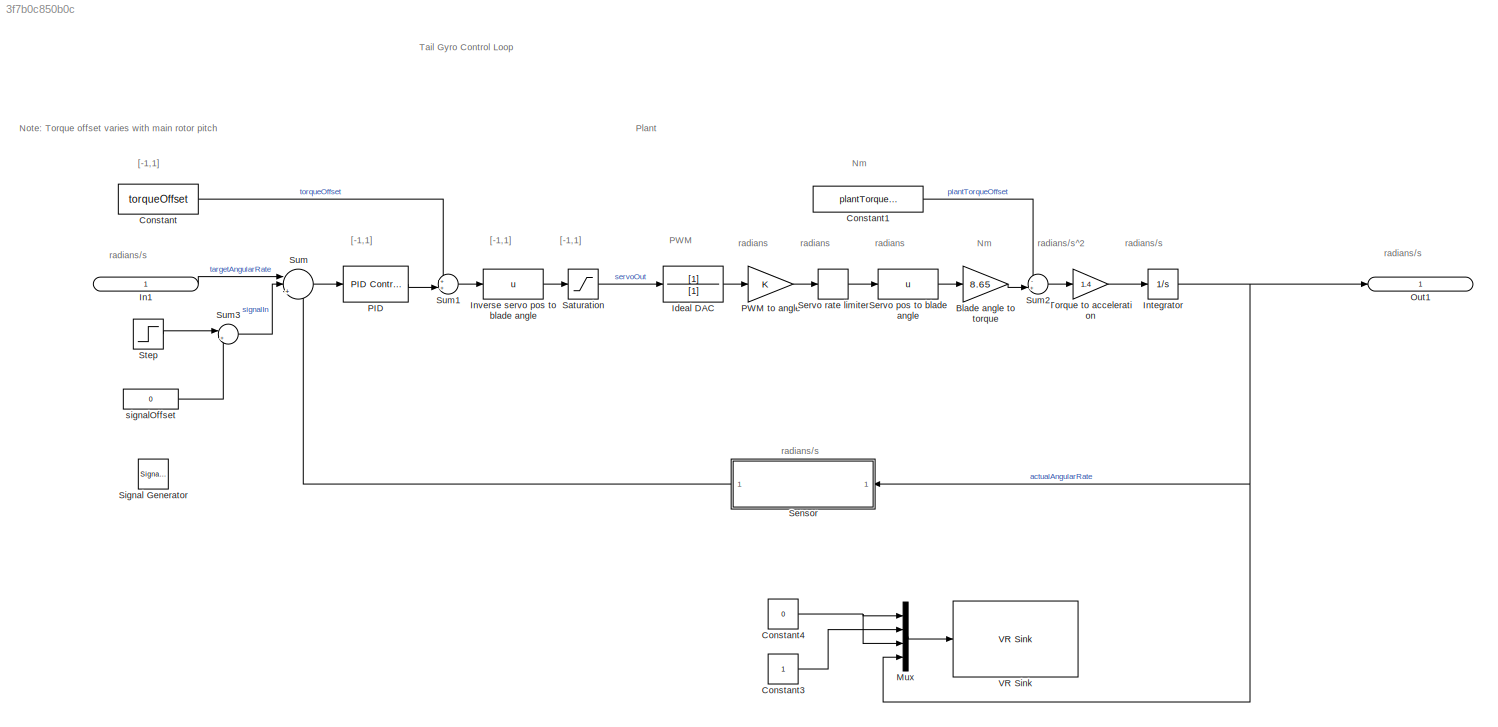
MODEL slx_3f7b0c850b0c
KIND model
CONFIG AbsTol = auto
CONFIG FixedStep = auto
CONFIG MaxStep = auto
CONFIG MinStep = auto
CONFIG RelTol = 1e-3
CONFIG SampleTimeConstraint = Unconstrained
CONFIG Solver = ode45
CONFIG SolverMode = Auto
CONFIG SolverName = ode45
CONFIG StartTime = 0.0
CONFIG StopTime = 10
BLOCK [Gain] Blade angle to torque
  Gain = 8.65
  OutDataTypeStr = Inherit: Inherit via internal rule
  ParamDataTypeStr = Inherit: Inherit via internal rule
  SaturateOnIntegerOverflow = off
BLOCK [Constant] Constant
  SampleTime = dt
  Value = torqueOffset
BLOCK [Constant] Constant1
  Value = plantTorqueOffset
BLOCK [Constant] Constant3
  Commented = on
BLOCK [Constant] Constant4
  Commented = on
  Value = 0
BLOCK [TransferFcn] Ideal DAC
  Denominator = [1]
BLOCK [Inport] In1
  IconDisplay = Signal name
  SampleTime = dt
BLOCK [Integrator] Integrator
  Ports = [1, 1]
BLOCK [Fcn] Inverse servo pos to blade angle 
  Expr = u
BLOCK [Mux] Mux
  Commented = on
  DisplayOption = bar
  Ports = [4, 1]
BLOCK [Outport] Out1
  IconDisplay = Signal name
BLOCK [Reference] PID  REF=simulink/Continuous/PID Controller
  AntiWindupMode = clamping
  Controller = PID
  ControllerParametersSource = internal
  D = .035
  DGainOutDataTypeStr = Inherit: Inherit via internal rule
  DOutDataTypeStr = Inherit: Inherit via internal rule
  DOutMax = []
  DOutMin = []
  DParamDataTypeStr = Inherit: Inherit via internal rule
  DParamMax = []
  DParamMin = []
  DProdOutDataTypeStr = Inherit: Inherit via internal rule
  DifferentiatorICPrevScaledInput = 0
  DifferentiatorOutDataTypeStr = Inherit: Inherit via internal rule
  DifferentiatorOutMax = []
  DifferentiatorOutMin = []
  ExternalReset = none
  FilterContinuousStateAttributes = ''
  FilterMethod = Forward Euler
  FilterOutDataTypeStr = Inherit: Inherit via internal rule
  FilterOutMax = []
  FilterOutMin = []
  FilterRTWStateStorageClass = Auto
  FilterStateMustResolveToSignalObject = off
  Form = Parallel
  I = 2.38693404249782
  IGainOutDataTypeStr = Inherit: Inherit via internal rule
  IOutDataTypeStr = Inherit: Inherit via internal rule
  IOutMax = []
  IOutMin = []
  IParamDataTypeStr = Inherit: Inherit via internal rule
  IParamMax = []
  IParamMin = []
  IProdOutDataTypeStr = Inherit: Inherit via internal rule
  IgnoreLimit = off
  InitialConditionForFilter = 0
  InitialConditionForIntegrator = 0
  InitialConditionSource = internal
  IntegratorContinuousStateAttributes = ''
  IntegratorMethod = Forward Euler
  IntegratorOutDataTypeStr = Inherit: Inherit via internal rule
  IntegratorOutMax = []
  IntegratorOutMin = []
  IntegratorRTWStateStorageClass = Auto
  IntegratorStateMustResolveToSignalObject = off
  Kb = 0.5
  KbOutDataTypeStr = Inherit: Inherit via internal rule
  KbOutMax = []
  KbOutMin = []
  KbParamDataTypeStr = Inherit: Inherit via internal rule
  KbParamMax = []
  KbParamMin = []
  Kt = 1
  KtOutDataTypeStr = Inherit: Inherit via internal rule
  KtOutMax = []
  KtOutMin = []
  KtParamDataTypeStr = Inherit: Inherit via internal rule
  KtParamMax = []
  KtParamMin = []
  LimitOutput = on
  LinearizeAsGain = on
  LockScale = off
  LowerSaturationLimit = -1 - torqueOffset
  N = 100
  NGainOutDataTypeStr = Inherit: Inherit via internal rule
  NOutDataTypeStr = Inherit: Inherit via internal rule
  NOutMax = []
  NOutMin = []
  NParamDataTypeStr = Inherit: Inherit via internal rule
  NParamMax = []
  NParamMin = []
  NProdOutDataTypeStr = Inherit: Inherit via internal rule
  P = 1.08315527025018
  PGainOutDataTypeStr = Inherit: Inherit via internal rule
  POutDataTypeStr = Inherit: Inherit via internal rule
  POutMax = []
  POutMin = []
  PParamDataTypeStr = Inherit: Inherit via internal rule
  PParamMax = []
  PParamMin = []
  PProdOutDataTypeStr = Inherit: Inherit via internal rule
  Ports = [1, 1]
  RndMeth = Floor
  SampleTime = dt
  SaturateOnIntegerOverflow = off
  SaturationOutDataTypeStr = Inherit: Same as input
  SaturationOutMax = []
  SaturationOutMin = []
  SourceBlock = simulink/Continuous/PID Controller
  SourceType = PID 1dof
  SumAccumDataTypeStr = Inherit: Inherit via internal rule
  SumDAccumDataTypeStr = Inherit: Inherit via internal rule
  SumDOutDataTypeStr = Inherit: Same as first input
  SumDOutMax = []
  SumDOutMin = []
  SumI1AccumDataTypeStr = Inherit: Inherit via internal rule
  SumI1OutDataTypeStr = Inherit: Inherit via internal rule
  SumI1OutMax = []
  SumI1OutMin = []
  SumI2AccumDataTypeStr = Inherit: Inherit via internal rule
  SumI2OutDataTypeStr = Inherit: Inherit via internal rule
  SumI2OutMax = []
  SumI2OutMin = []
  SumI3AccumDataTypeStr = Inherit: Inherit via internal rule
  SumI3OutDataTypeStr = Inherit: Inherit via internal rule
  SumI3OutMax = []
  SumI3OutMin = []
  SumOutDataTypeStr = Inherit: Same as first input
  SumOutMax = []
  SumOutMin = []
  TimeDomain = Discrete-time
  TrackingMode = off
  UpperSaturationLimit = 1 - torqueOffset
  UseFilter = off
  ZeroCross = off
BLOCK [Gain] PWM to angle
  OutDataTypeStr = Inherit: Inherit via internal rule
  ParamDataTypeStr = Inherit: Inherit via internal rule
  SaturateOnIntegerOverflow = off
BLOCK [Saturate] Saturation
  InputPortMap = u0
  LowerLimit = -1
  Ports = [1, 1]
  UpperLimit = 1
BLOCK [ModelReference] Sensor
  CopyOfModelName = gyroscope.slx
  DefaultDataLogging = on
  ModelNameDialog = gyroscope.slx
  ModelReferenceVersion = 1.23
  ParameterArgumentNames = randomSeed
  ParameterArgumentValues = 1
  Ports = [1, 1]
BLOCK [Fcn] Servo pos to blade angle
  Expr = u
BLOCK [RateLimiter] Servo rate limiter
  FallingSlewLimit = -15
  RisingSlewLimit = 15
  SampleTimeMode = inherited
BLOCK [SignalGenerator] Signal Generator
  Frequency = 0.5
  Ports = [0, 1]
  Units = rad/sec
  WaveForm = square
BLOCK [Step] Step
  SampleTime = dt
BLOCK [Sum] Sum
  IconShape = round
  InputSameDT = off
  Inputs = ||++-
  OutDataTypeStr = Inherit: Inherit via internal rule
  Ports = [3, 1]
  SaturateOnIntegerOverflow = off
BLOCK [Sum] Sum1
  IconShape = round
  InputSameDT = off
  Inputs = ++|
  OutDataTypeStr = Inherit: Inherit via internal rule
  Ports = [2, 1]
  SaturateOnIntegerOverflow = off
BLOCK [Sum] Sum2
  IconShape = round
  InputSameDT = off
  Inputs = -+|
  OutDataTypeStr = Inherit: Inherit via internal rule
  Ports = [2, 1]
  SaturateOnIntegerOverflow = off
BLOCK [Sum] Sum3
  IconShape = round
  InputSameDT = off
  Inputs = |++
  OutDataTypeStr = Inherit: Inherit via internal rule
  Ports = [2, 1]
  SaturateOnIntegerOverflow = off
BLOCK [Gain] Torque to acceleration
  Gain = 1.4
  OutDataTypeStr = Inherit: Inherit via internal rule
  ParamDataTypeStr = Inherit: Inherit via internal rule
  SaturateOnIntegerOverflow = off
BLOCK [Reference] VR Sink  REF=vrlib/VR Sink
  AllowVariableSize = off
  AutoView = off
  Commented = on
  FieldsWritten = Helicopter.rotation.4.1.1.double
  InstantiateOnLoad = on
  Ports = [1]
  RemoteChange = off
  RemoteView = off
  SampleTime = -1
  SourceBlock = vrlib/VR Sink
  SourceType = Virtual Reality Sink
  VideoDimensions = []
  ViewEnable = on
  WorldFileName = animation\animation_world.wrl
BLOCK [Constant] signalOffset
  SampleTime = dt
  Value = 0
ANNOTATION (root): Note: Torque offset varies with main rotor pitch
ANNOTATION (root): Tail Gyro Control Loop
ANNOTATION (root): Nm
ANNOTATION (root): PWM
ANNOTATION (root): Plant
ANNOTATION (root): [-1,1]
ANNOTATION (root): radians
ANNOTATION (root): radians/s
ANNOTATION (root): radians/s^2
LINE Blade angle to torque:1 -> Sum2:2
LINE Constant1:1 -> Sum2:1
LINE Constant3:1 -> Mux:2
NET Constant4:1 -> Mux:1, Mux:3
LINE Constant:1 -> Sum1:1
LINE Ideal DAC:1 -> PWM to angle:1
LINE In1:1 -> Sum:1
NET Integrator:1 -> Mux:4, Out1:1, Sensor:1
LINE Inverse servo pos to blade angle :1 -> Saturation:1
LINE Mux:1 -> VR Sink:1
LINE PID:1 -> Sum1:2
LINE PWM to angle:1 -> Servo rate limiter:1
LINE Saturation:1 -> Ideal DAC:1
LINE Sensor:1 -> Sum:3
LINE Servo pos to blade angle:1 -> Blade angle to torque:1
LINE Servo rate limiter:1 -> Servo pos to blade angle:1
LINE Step:1 -> Sum3:1
LINE Sum1:1 -> Inverse servo pos to blade angle :1
LINE Sum2:1 -> Torque to acceleration:1
LINE Sum3:1 -> Sum:2
LINE Sum:1 -> PID:1
LINE Torque to acceleration:1 -> Integrator:1
LINE signalOffset:1 -> Sum3:2
note: NET lines group one-source signal fan-out (src -> all destinations, sorted); 1:1 wires keep LINE
